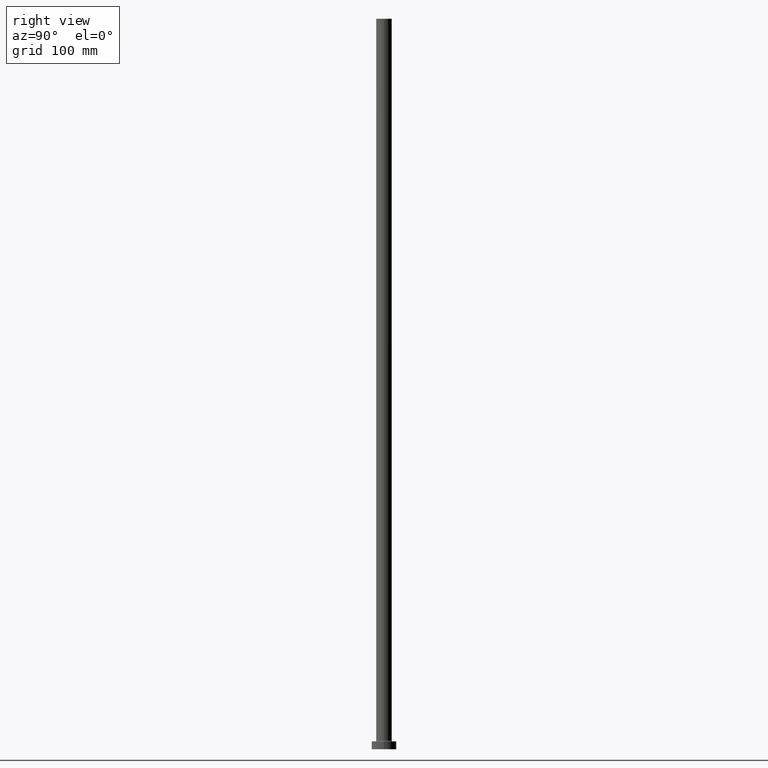
[diagram: clean part render]
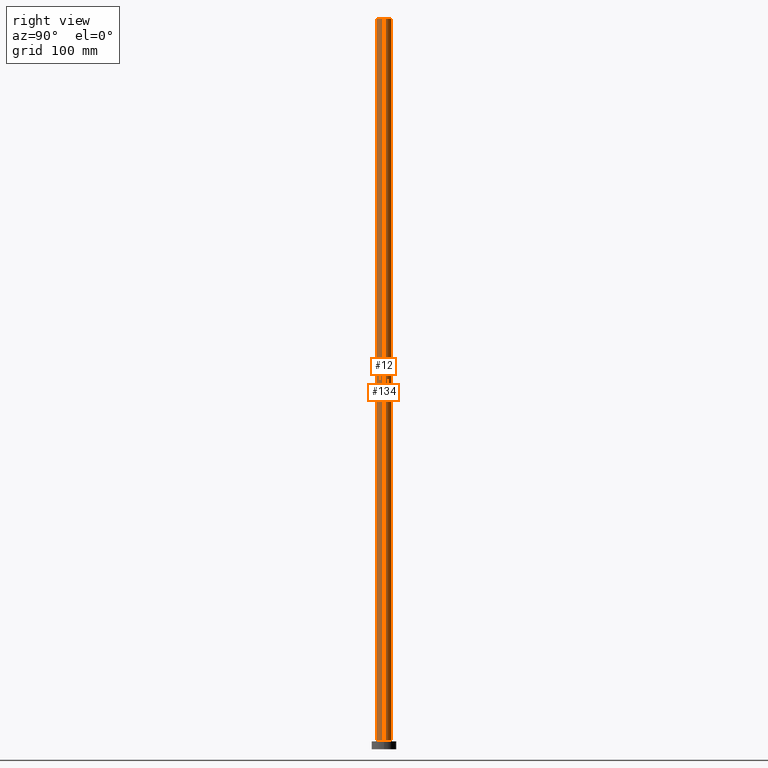
[diagram: same view with one multi-face feature highlighted, each face labeled with its STEP entity id]
A machine part, right view. The highlighted faces form ONE feature: a constant-radius fillet chain: 2 tangent blend faces with common blend radius 7 mm. The faces share edges in the B-rep.
Their STEP definitions:
[1] entity #12 (Cylinder):
#4 = CARTESIAN_POINT ( 'NONE',  ( 7.000000000000000888, 8.572527594031474176E-16, 650.0000000000000000 ) ) ;
#5 = LINE ( 'NONE', #73, #55 ) ;
#12 = ADVANCED_FACE ( 'NONE', ( #406 ), #286, .T. ) ;
#17 = DIRECTION ( 'NONE',  ( 0.000000000000000000, 0.000000000000000000, 1.000000000000000000 ) ) ;
#27 = DIRECTION ( 'NONE',  ( -0.000000000000000000, -0.000000000000000000, -1.000000000000000000 ) ) ;
#32 = CARTESIAN_POINT ( 'NONE',  ( -7.000000000000000888, 0.000000000000000000, 650.0000000000000000 ) ) ;
#45 = EDGE_CURVE ( 'NONE', #269, #176, #316, .T. ) ;
#55 = VECTOR ( 'NONE', #116, 1000.000000000000000 ) ;
#56 = CARTESIAN_POINT ( 'NONE',  ( 0.000000000000000000, 0.000000000000000000, 650.0000000000000000 ) ) ;
#57 = VERTEX_POINT ( 'NONE', #144 ) ;
#66 = EDGE_CURVE ( 'NONE', #269, #57, #67, .T. ) ;
#67 = LINE ( 'NONE', #427, #371 ) ;
#73 = CARTESIAN_POINT ( 'NONE',  ( 7.000000000000000888, 8.572527594031474176E-16, 650.0000000000000000 ) ) ;
#105 = AXIS2_PLACEMENT_3D ( 'NONE', #133, #17, #168 ) ;
#116 = DIRECTION ( 'NONE',  ( -0.000000000000000000, -0.000000000000000000, -1.000000000000000000 ) ) ;
#127 = ORIENTED_EDGE ( 'NONE', *, *, #329, .T. ) ;
#133 = CARTESIAN_POINT ( 'NONE',  ( 0.000000000000000000, 0.000000000000000000, 650.0000000000000000 ) ) ;
#144 = CARTESIAN_POINT ( 'NONE',  ( -7.000000000000000888, 0.000000000000000000, 7.700000000000040146 ) ) ;
#149 = ORIENTED_EDGE ( 'NONE', *, *, #45, .F. ) ;
#168 = DIRECTION ( 'NONE',  ( 1.000000000000000000, 0.000000000000000000, 0.000000000000000000 ) ) ;
#171 = DIRECTION ( 'NONE',  ( -0.000000000000000000, -0.000000000000000000, -1.000000000000000000 ) ) ;
#176 = VERTEX_POINT ( 'NONE', #4 ) ;
#204 = VERTEX_POINT ( 'NONE', #435 ) ;
#227 = DIRECTION ( 'NONE',  ( 0.000000000000000000, 0.000000000000000000, 1.000000000000000000 ) ) ;
#231 = ORIENTED_EDGE ( 'NONE', *, *, #66, .T. ) ;
#269 = VERTEX_POINT ( 'NONE', #32 ) ;
#270 = AXIS2_PLACEMENT_3D ( 'NONE', #430, #227, #360 ) ;
#274 = EDGE_CURVE ( 'NONE', #176, #204, #5, .T. ) ;
#279 = CIRCLE ( 'NONE', #270, 7.000000000000000888 ) ;
#286 = CYLINDRICAL_SURFACE ( 'NONE', #454, 7.000000000000000888 ) ;
#308 = DIRECTION ( 'NONE',  ( -1.000000000000000000, 0.000000000000000000, 0.000000000000000000 ) ) ;
#312 = ORIENTED_EDGE ( 'NONE', *, *, #274, .F. ) ;
#316 = CIRCLE ( 'NONE', #105, 7.000000000000000888 ) ;
#329 = EDGE_CURVE ( 'NONE', #57, #204, #279, .T. ) ;
#360 = DIRECTION ( 'NONE',  ( 1.000000000000000000, 0.000000000000000000, 0.000000000000000000 ) ) ;
#371 = VECTOR ( 'NONE', #27, 1000.000000000000000 ) ;
#399 = EDGE_LOOP ( 'NONE', ( #312, #149, #231, #127 ) ) ;
#406 = FACE_OUTER_BOUND ( 'NONE', #399, .T. ) ;
#427 = CARTESIAN_POINT ( 'NONE',  ( -7.000000000000000888, 0.000000000000000000, 650.0000000000000000 ) ) ;
#430 = CARTESIAN_POINT ( 'NONE',  ( 0.000000000000000000, 0.000000000000000000, 7.700000000000040146 ) ) ;
#435 = CARTESIAN_POINT ( 'NONE',  ( 7.000000000000000888, 8.572527594031474176E-16, 7.700000000000040146 ) ) ;
#454 = AXIS2_PLACEMENT_3D ( 'NONE', #56, #171, #308 ) ;
[2] entity #134 (Cylinder):
#4 = CARTESIAN_POINT ( 'NONE',  ( 7.000000000000000888, 8.572527594031474176E-16, 650.0000000000000000 ) ) ;
#5 = LINE ( 'NONE', #73, #55 ) ;
#16 = EDGE_CURVE ( 'NONE', #204, #57, #182, .T. ) ;
#27 = DIRECTION ( 'NONE',  ( -0.000000000000000000, -0.000000000000000000, -1.000000000000000000 ) ) ;
#30 = FACE_OUTER_BOUND ( 'NONE', #114, .T. ) ;
#32 = CARTESIAN_POINT ( 'NONE',  ( -7.000000000000000888, 0.000000000000000000, 650.0000000000000000 ) ) ;
#38 = DIRECTION ( 'NONE',  ( 0.000000000000000000, 0.000000000000000000, 1.000000000000000000 ) ) ;
#51 = ORIENTED_EDGE ( 'NONE', *, *, #66, .F. ) ;
#55 = VECTOR ( 'NONE', #116, 1000.000000000000000 ) ;
#57 = VERTEX_POINT ( 'NONE', #144 ) ;
#61 = CARTESIAN_POINT ( 'NONE',  ( 0.000000000000000000, 0.000000000000000000, 7.700000000000040146 ) ) ;
#66 = EDGE_CURVE ( 'NONE', #269, #57, #67, .T. ) ;
#67 = LINE ( 'NONE', #427, #371 ) ;
#69 = DIRECTION ( 'NONE',  ( -1.000000000000000000, 0.000000000000000000, 0.000000000000000000 ) ) ;
#73 = CARTESIAN_POINT ( 'NONE',  ( 7.000000000000000888, 8.572527594031474176E-16, 650.0000000000000000 ) ) ;
#103 = CARTESIAN_POINT ( 'NONE',  ( 0.000000000000000000, 0.000000000000000000, 650.0000000000000000 ) ) ;
#114 = EDGE_LOOP ( 'NONE', ( #405, #440, #252, #51 ) ) ;
#116 = DIRECTION ( 'NONE',  ( -0.000000000000000000, -0.000000000000000000, -1.000000000000000000 ) ) ;
#125 = CARTESIAN_POINT ( 'NONE',  ( 0.000000000000000000, 0.000000000000000000, 650.0000000000000000 ) ) ;
#134 = ADVANCED_FACE ( 'NONE', ( #30 ), #423, .T. ) ;
#144 = CARTESIAN_POINT ( 'NONE',  ( -7.000000000000000888, 0.000000000000000000, 7.700000000000040146 ) ) ;
#176 = VERTEX_POINT ( 'NONE', #4 ) ;
#182 = CIRCLE ( 'NONE', #189, 7.000000000000000888 ) ;
#189 = AXIS2_PLACEMENT_3D ( 'NONE', #61, #343, #217 ) ;
#204 = VERTEX_POINT ( 'NONE', #435 ) ;
#217 = DIRECTION ( 'NONE',  ( 1.000000000000000000, 0.000000000000000000, 0.000000000000000000 ) ) ;
#235 = EDGE_CURVE ( 'NONE', #176, #269, #377, .T. ) ;
#249 = AXIS2_PLACEMENT_3D ( 'NONE', #103, #429, #69 ) ;
#252 = ORIENTED_EDGE ( 'NONE', *, *, #16, .T. ) ;
#269 = VERTEX_POINT ( 'NONE', #32 ) ;
#274 = EDGE_CURVE ( 'NONE', #176, #204, #5, .T. ) ;
#296 = DIRECTION ( 'NONE',  ( 1.000000000000000000, 0.000000000000000000, 0.000000000000000000 ) ) ;
#343 = DIRECTION ( 'NONE',  ( 0.000000000000000000, 0.000000000000000000, 1.000000000000000000 ) ) ;
#371 = VECTOR ( 'NONE', #27, 1000.000000000000000 ) ;
#377 = CIRCLE ( 'NONE', #410, 7.000000000000000888 ) ;
#405 = ORIENTED_EDGE ( 'NONE', *, *, #235, .F. ) ;
#410 = AXIS2_PLACEMENT_3D ( 'NONE', #125, #38, #296 ) ;
#423 = CYLINDRICAL_SURFACE ( 'NONE', #249, 7.000000000000000888 ) ;
#427 = CARTESIAN_POINT ( 'NONE',  ( -7.000000000000000888, 0.000000000000000000, 650.0000000000000000 ) ) ;
#429 = DIRECTION ( 'NONE',  ( -0.000000000000000000, -0.000000000000000000, -1.000000000000000000 ) ) ;
#435 = CARTESIAN_POINT ( 'NONE',  ( 7.000000000000000888, 8.572527594031474176E-16, 7.700000000000040146 ) ) ;
#440 = ORIENTED_EDGE ( 'NONE', *, *, #274, .T. ) ;